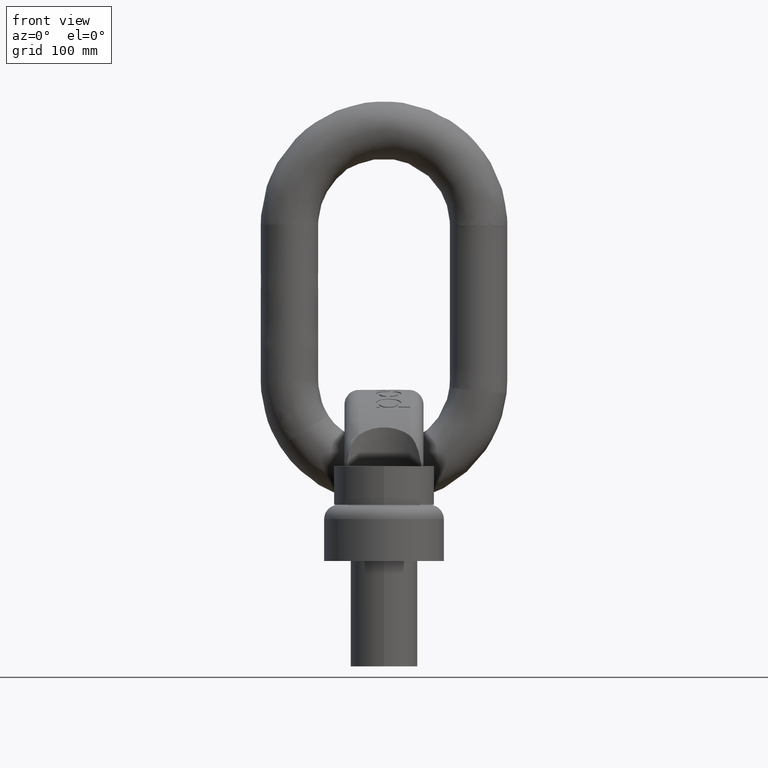
[diagram: clean part render]
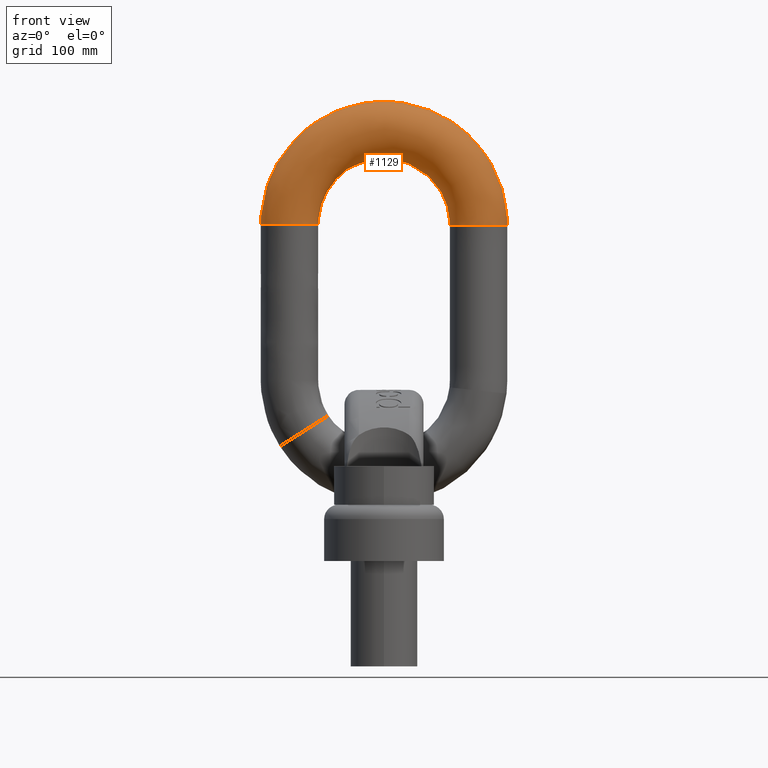
[diagram: same view with one face highlighted and labeled with its STEP entity id]
A machine part, front view. The second image highlights one B-rep face of the part: STEP entity #1129.
In plain terms, the highlighted face is a freeform B-spline surface patch.
Its self-contained STEP definition (entity closure, byte-faithful):
#32=(
BOUNDED_CURVE()
B_SPLINE_CURVE(4,(#6846,#6847,#6848,#6849,#6850,#6851,#6852,#6853,#6854,
#6855,#6856,#6857,#6858,#6859),.UNSPECIFIED.,.T.,.F.)
B_SPLINE_CURVE_WITH_KNOTS((2,3,3,3,3,3,2),(-0.25,0.,0.25,0.5,0.75,1.,1.25),
 .UNSPECIFIED.)
CURVE()
GEOMETRIC_REPRESENTATION_ITEM()
RATIONAL_B_SPLINE_CURVE((1.0166117137858,1.0166117137858,0.958470715535492,
1.0166117137858,1.0166117137858,0.958470715535492,1.0166117137858,1.0166117137858,
0.958470715535492,1.0166117137858,1.0166117137858,0.958470715535492,1.0166117137858,
1.0166117137858))
REPRESENTATION_ITEM('')
);
#34=(
BOUNDED_CURVE()
B_SPLINE_CURVE(4,(#7212,#7213,#7214,#7215,#7216,#7217,#7218,#7219,#7220,
#7221,#7222,#7223,#7224,#7225),.UNSPECIFIED.,.T.,.F.)
B_SPLINE_CURVE_WITH_KNOTS((2,3,3,3,3,3,2),(-0.25,0.,0.25,0.5,0.75,1.,1.25),
 .UNSPECIFIED.)
CURVE()
GEOMETRIC_REPRESENTATION_ITEM()
RATIONAL_B_SPLINE_CURVE((1.0166117137858,1.0166117137858,0.958470715535492,
1.0166117137858,1.0166117137858,0.958470715535492,1.0166117137858,1.0166117137858,
0.958470715535492,1.0166117137858,1.0166117137858,0.958470715535492,1.0166117137858,
1.0166117137858))
REPRESENTATION_ITEM('')
);
#821=(
BOUNDED_SURFACE()
B_SPLINE_SURFACE(4,3,((#7227,#7228,#7229,#7230,#7231,#7232,#7233,#7234,
#7235,#7236,#7237,#7238,#7239,#7240,#7241,#7242,#7243,#7244,#7245,#7246,
#7247,#7248),(#7249,#7250,#7251,#7252,#7253,#7254,#7255,#7256,#7257,#7258,
#7259,#7260,#7261,#7262,#7263,#7264,#7265,#7266,#7267,#7268,#7269,#7270),
(#7271,#7272,#7273,#7274,#7275,#7276,#7277,#7278,#7279,#7280,#7281,#7282,
#7283,#7284,#7285,#7286,#7287,#7288,#7289,#7290,#7291,#7292),(#7293,#7294,
#7295,#7296,#7297,#7298,#7299,#7300,#7301,#7302,#7303,#7304,#7305,#7306,
#7307,#7308,#7309,#7310,#7311,#7312,#7313,#7314),(#7315,#7316,#7317,#7318,
#7319,#7320,#7321,#7322,#7323,#7324,#7325,#7326,#7327,#7328,#7329,#7330,
#7331,#7332,#7333,#7334,#7335,#7336),(#7337,#7338,#7339,#7340,#7341,#7342,
#7343,#7344,#7345,#7346,#7347,#7348,#7349,#7350,#7351,#7352,#7353,#7354,
#7355,#7356,#7357,#7358),(#7359,#7360,#7361,#7362,#7363,#7364,#7365,#7366,
#7367,#7368,#7369,#7370,#7371,#7372,#7373,#7374,#7375,#7376,#7377,#7378,
#7379,#7380),(#7381,#7382,#7383,#7384,#7385,#7386,#7387,#7388,#7389,#7390,
#7391,#7392,#7393,#7394,#7395,#7396,#7397,#7398,#7399,#7400,#7401,#7402),
(#7403,#7404,#7405,#7406,#7407,#7408,#7409,#7410,#7411,#7412,#7413,#7414,
#7415,#7416,#7417,#7418,#7419,#7420,#7421,#7422,#7423,#7424),(#7425,#7426,
#7427,#7428,#7429,#7430,#7431,#7432,#7433,#7434,#7435,#7436,#7437,#7438,
#7439,#7440,#7441,#7442,#7443,#7444,#7445,#7446),(#7447,#7448,#7449,#7450,
#7451,#7452,#7453,#7454,#7455,#7456,#7457,#7458,#7459,#7460,#7461,#7462,
#7463,#7464,#7465,#7466,#7467,#7468),(#7469,#7470,#7471,#7472,#7473,#7474,
#7475,#7476,#7477,#7478,#7479,#7480,#7481,#7482,#7483,#7484,#7485,#7486,
#7487,#7488,#7489,#7490),(#7491,#7492,#7493,#7494,#7495,#7496,#7497,#7498,
#7499,#7500,#7501,#7502,#7503,#7504,#7505,#7506,#7507,#7508,#7509,#7510,
#7511,#7512),(#7513,#7514,#7515,#7516,#7517,#7518,#7519,#7520,#7521,#7522,
#7523,#7524,#7525,#7526,#7527,#7528,#7529,#7530,#7531,#7532,#7533,#7534)),
 .UNSPECIFIED.,.T.,.F.,.F.)
B_SPLINE_SURFACE_WITH_KNOTS((2,3,3,3,3,3,2),(4,1,1,1,1,1,1,1,1,1,1,1,1,
1,1,1,1,1,1,4),(-0.25,0.,0.25,0.5,0.75,1.,1.25),(0.,0.00301747800246402,
0.00844602982105034,0.0195129656569916,0.0543983294734873,0.0981283783414285,
0.179000147466938,0.292593096382167,0.432811601348054,0.518610884125643,
0.630774925291027,0.714258193759197,0.771537738003391,0.830027776828079,
0.860219258366038,0.897651060292576,0.946474217601711,0.974375341287332,
0.98725474696475,1.),.UNSPECIFIED.)
GEOMETRIC_REPRESENTATION_ITEM()
RATIONAL_B_SPLINE_SURFACE(((1.0166117137858,1.0166117137858,1.0166117137858,
1.0166117137858,1.0166117137858,1.01661171378581,1.0166117137858,1.01661171378581,
1.0166117137858,1.01661171378581,1.0166117137858,1.01661171378581,1.0166117137858,
1.0166117137858,1.0166117137858,1.0166117137858,1.0166117137858,1.0166117137858,
1.0166117137858,1.0166117137858,1.0166117137858,1.0166117137858),(1.0166117137858,
1.0166117137858,1.0166117137858,1.0166117137858,1.0166117137858,1.01661171378581,
1.0166117137858,1.01661171378581,1.0166117137858,1.01661171378581,1.0166117137858,
1.01661171378581,1.0166117137858,1.0166117137858,1.0166117137858,1.0166117137858,
1.0166117137858,1.0166117137858,1.0166117137858,1.0166117137858,1.0166117137858,
1.0166117137858),(0.958470715535492,0.958470715535492,0.958470715535492,
0.958470715535492,0.958470715535493,0.958470715535491,0.958470715535494,
0.958470715535491,0.958470715535493,0.958470715535491,0.958470715535492,
0.958470715535494,0.958470715535492,0.958470715535492,0.958470715535493,
0.958470715535492,0.958470715535493,0.958470715535493,0.958470715535491,
0.958470715535492,0.958470715535492,0.958470715535492),(1.0166117137858,
1.0166117137858,1.0166117137858,1.0166117137858,1.0166117137858,1.01661171378581,
1.0166117137858,1.01661171378581,1.0166117137858,1.01661171378581,1.0166117137858,
1.01661171378581,1.0166117137858,1.0166117137858,1.0166117137858,1.0166117137858,
1.0166117137858,1.0166117137858,1.0166117137858,1.0166117137858,1.0166117137858,
1.0166117137858),(1.0166117137858,1.0166117137858,1.0166117137858,1.0166117137858,
1.0166117137858,1.01661171378581,1.0166117137858,1.01661171378581,1.0166117137858,
1.01661171378581,1.0166117137858,1.01661171378581,1.0166117137858,1.0166117137858,
1.0166117137858,1.0166117137858,1.0166117137858,1.0166117137858,1.0166117137858,
1.0166117137858,1.0166117137858,1.0166117137858),(0.958470715535492,0.958470715535492,
0.958470715535492,0.958470715535492,0.958470715535493,0.958470715535491,
0.958470715535494,0.958470715535491,0.958470715535493,0.958470715535491,
0.958470715535492,0.958470715535494,0.958470715535492,0.958470715535492,
0.958470715535493,0.958470715535492,0.958470715535493,0.958470715535493,
0.958470715535491,0.958470715535492,0.958470715535492,0.958470715535492),
(1.0166117137858,1.0166117137858,1.0166117137858,1.0166117137858,1.0166117137858,
1.01661171378581,1.0166117137858,1.01661171378581,1.0166117137858,1.01661171378581,
1.0166117137858,1.01661171378581,1.0166117137858,1.0166117137858,1.0166117137858,
1.0166117137858,1.0166117137858,1.0166117137858,1.0166117137858,1.0166117137858,
1.0166117137858,1.0166117137858),(1.0166117137858,1.0166117137858,1.0166117137858,
1.0166117137858,1.0166117137858,1.01661171378581,1.0166117137858,1.01661171378581,
1.0166117137858,1.01661171378581,1.0166117137858,1.01661171378581,1.0166117137858,
1.0166117137858,1.0166117137858,1.0166117137858,1.0166117137858,1.0166117137858,
1.0166117137858,1.0166117137858,1.0166117137858,1.0166117137858),(0.958470715535492,
0.958470715535492,0.958470715535492,0.958470715535492,0.958470715535493,
0.958470715535491,0.958470715535494,0.958470715535491,0.958470715535493,
0.958470715535491,0.958470715535492,0.958470715535494,0.958470715535492,
0.958470715535492,0.958470715535493,0.958470715535492,0.958470715535493,
0.958470715535493,0.958470715535491,0.958470715535492,0.958470715535492,
0.958470715535492),(1.0166117137858,1.0166117137858,1.0166117137858,1.0166117137858,
1.0166117137858,1.01661171378581,1.0166117137858,1.01661171378581,1.0166117137858,
1.01661171378581,1.0166117137858,1.01661171378581,1.0166117137858,1.0166117137858,
1.0166117137858,1.0166117137858,1.0166117137858,1.0166117137858,1.0166117137858,
1.0166117137858,1.0166117137858,1.0166117137858),(1.0166117137858,1.0166117137858,
1.0166117137858,1.0166117137858,1.0166117137858,1.01661171378581,1.0166117137858,
1.01661171378581,1.0166117137858,1.01661171378581,1.0166117137858,1.01661171378581,
1.0166117137858,1.0166117137858,1.0166117137858,1.0166117137858,1.0166117137858,
1.0166117137858,1.0166117137858,1.0166117137858,1.0166117137858,1.0166117137858),
(0.958470715535492,0.958470715535492,0.958470715535492,0.958470715535492,
0.958470715535493,0.958470715535491,0.958470715535494,0.958470715535491,
0.958470715535493,0.958470715535491,0.958470715535492,0.958470715535494,
0.958470715535492,0.958470715535492,0.958470715535493,0.958470715535492,
0.958470715535493,0.958470715535493,0.958470715535491,0.958470715535492,
0.958470715535492,0.958470715535492),(1.0166117137858,1.0166117137858,1.0166117137858,
1.0166117137858,1.0166117137858,1.01661171378581,1.0166117137858,1.01661171378581,
1.0166117137858,1.01661171378581,1.0166117137858,1.01661171378581,1.0166117137858,
1.0166117137858,1.0166117137858,1.0166117137858,1.0166117137858,1.0166117137858,
1.0166117137858,1.0166117137858,1.0166117137858,1.0166117137858),(1.0166117137858,
1.0166117137858,1.0166117137858,1.0166117137858,1.0166117137858,1.01661171378581,
1.0166117137858,1.01661171378581,1.0166117137858,1.01661171378581,1.0166117137858,
1.01661171378581,1.0166117137858,1.0166117137858,1.0166117137858,1.0166117137858,
1.0166117137858,1.0166117137858,1.0166117137858,1.0166117137858,1.0166117137858,
1.0166117137858)))
REPRESENTATION_ITEM('')
SURFACE()
);
#1129=ADVANCED_FACE('',(#1209,#1210),#821,.F.);
#1209=FACE_BOUND('',#1398,.T.);
#1210=FACE_BOUND('',#1399,.T.);
#1398=EDGE_LOOP('',(#2735));
#1399=EDGE_LOOP('',(#2736));
#2735=ORIENTED_EDGE('',*,*,#3413,.T.);
#2736=ORIENTED_EDGE('',*,*,#3415,.T.);
#3009=VERTEX_POINT('',#6860);
#3011=VERTEX_POINT('',#7226);
#3413=EDGE_CURVE('',#3009,#3009,#32,.T.);
#3415=EDGE_CURVE('',#3011,#3011,#34,.T.);
#6846=CARTESIAN_POINT('',(87.4859886639094,24.,280.201193927326));
#6847=CARTESIAN_POINT('',(70.5152887140247,24.,280.220234272958));
#6848=CARTESIAN_POINT('',(59.2431196443468,19.7573593128807,280.232881128758));
#6849=CARTESIAN_POINT('',(55.0004446568757,8.48528137423857,280.237641215166));
#6850=CARTESIAN_POINT('',(55.0004446568757,-8.48528137423857,280.237641215166));
#6851=CARTESIAN_POINT('',(59.2431196443468,-19.7573593128807,280.232881128758));
#6852=CARTESIAN_POINT('',(70.5152887140247,-24.,280.220234272958));
#6853=CARTESIAN_POINT('',(87.4859886639094,-24.,280.201193927326));
#6854=CARTESIAN_POINT('',(98.7581577335872,-19.7573593128807,280.188547071525));
#6855=CARTESIAN_POINT('',(103.000832721058,-8.48528137423857,280.183786985117));
#6856=CARTESIAN_POINT('',(103.000832721058,8.48528137423857,280.183786985117));
#6857=CARTESIAN_POINT('',(98.7581577335871,19.7573593128807,280.188547071525));
#6858=CARTESIAN_POINT('',(87.4859886639094,24.,280.201193927326));
#6859=CARTESIAN_POINT('',(70.5152887140247,24.,280.220234272958));
#6860=CARTESIAN_POINT('',(79.000638688967,24.,280.210714100142));
#7212=CARTESIAN_POINT('',(-70.5146258746103,24.,280.998765416565));
#7213=CARTESIAN_POINT('',(-87.4851663009502,24.,281.00168699898));
#7214=CARTESIAN_POINT('',(-98.757229412926,19.7573593128807,281.003627553643));
#7215=CARTESIAN_POINT('',(-102.999864519511,8.48528137423857,281.004357949247));
#7216=CARTESIAN_POINT('',(-102.999864519511,-8.48528137423858,281.004357949247));
#7217=CARTESIAN_POINT('',(-98.757229412926,-19.7573593128807,281.003627553643));
#7218=CARTESIAN_POINT('',(-87.4851663009502,-24.,281.00168699898));
#7219=CARTESIAN_POINT('',(-70.5146258746103,-24.,280.998765416565));
#7220=CARTESIAN_POINT('',(-59.2425627626345,-19.7573593128807,280.996824861902));
#7221=CARTESIAN_POINT('',(-54.9999276560495,-8.48528137423857,280.996094466298));
#7222=CARTESIAN_POINT('',(-54.9999276560496,8.48528137423858,280.996094466298));
#7223=CARTESIAN_POINT('',(-59.2425627626345,19.7573593128807,280.996824861902));
#7224=CARTESIAN_POINT('',(-70.5146258746103,24.,280.998765416565));
#7225=CARTESIAN_POINT('',(-87.4851663009502,24.,281.00168699898));
#7226=CARTESIAN_POINT('',(-78.9998960877802,24.,281.000226207773));
#7227=CARTESIAN_POINT('',(70.5152887140247,24.,280.220234272958));
#7228=CARTESIAN_POINT('',(70.5149405638875,24.,280.477611494547));
#7229=CARTESIAN_POINT('',(70.5133945966391,24.,281.185496149016));
#7230=CARTESIAN_POINT('',(70.5046176563928,24.,282.709776313776));
#7231=CARTESIAN_POINT('',(70.359627819216,24.,286.62880790393));
#7232=CARTESIAN_POINT('',(69.6210856744686,24.,293.239600630157));
#7233=CARTESIAN_POINT('',(67.0293584060152,24.,304.15718767117));
#7234=CARTESIAN_POINT('',(60.6202786167138,24.,318.647044436771));
#7235=CARTESIAN_POINT('',(47.293452493628,24.,335.042086897532));
#7236=CARTESIAN_POINT('',(29.5307997209734,24.,346.174108136202));
#7237=CARTESIAN_POINT('',(9.32576834749944,24.,351.712766755696));
#7238=CARTESIAN_POINT('',(-8.75647344881945,24.,351.870721951593));
#7239=CARTESIAN_POINT('',(-25.5394470403522,24.,347.309645367377));
#7240=CARTESIAN_POINT('',(-38.6129137829912,24.,340.508270295953));
#7241=CARTESIAN_POINT('',(-48.011194057902,24.,333.08943751715));
#7242=CARTESIAN_POINT('',(-55.4807976699069,24.,324.842761020602));
#7243=CARTESIAN_POINT('',(-61.8329947312134,23.9999999999999,315.715874096641));
#7244=CARTESIAN_POINT('',(-67.0427867071589,24.,304.301226678497));
#7245=CARTESIAN_POINT('',(-69.6055486639566,24.,293.285818994669));
#7246=CARTESIAN_POINT('',(-70.4009332878647,24.,286.067702853599));
#7247=CARTESIAN_POINT('',(-70.4956541627276,24.,282.737515874406));
#7248=CARTESIAN_POINT('',(-70.5146258746103,24.,280.998765416565));
#7249=CARTESIAN_POINT('',(87.4859886639094,24.,280.201193927326));
#7250=CARTESIAN_POINT('',(87.4855567255382,24.,280.471919867219));
#7251=CARTESIAN_POINT('',(87.4836386950567,24.,281.23937185706));
#7252=CARTESIAN_POINT('',(87.4727494353102,24.,283.104078492904));
#7253=CARTESIAN_POINT('',(87.2928653352383,24.,287.993676351925));
#7254=CARTESIAN_POINT('',(86.3765804999706,24.,296.178612488209));
#7255=CARTESIAN_POINT('',(83.1611101166979,24.,309.733492525798));
#7256=CARTESIAN_POINT('',(75.2095765979622,24.,327.705955167654));
#7257=CARTESIAN_POINT('',(58.6754237866682,24.,348.049014866444));
#7258=CARTESIAN_POINT('',(36.6378874247087,24.,361.858997745929));
#7259=CARTESIAN_POINT('',(11.570172636467,24.,368.731163100777));
#7260=CARTESIAN_POINT('',(-10.8638672669417,24.,368.92704125926));
#7261=CARTESIAN_POINT('',(-31.6859480405189,24.,363.267879138328));
#7262=CARTESIAN_POINT('',(-47.9057662402708,24.,354.830486696631));
#7263=CARTESIAN_POINT('',(-59.5659020290586,24.,345.624526500023));
#7264=CARTESIAN_POINT('',(-68.83319241163,24.0000000000001,335.396734672422));
#7265=CARTESIAN_POINT('',(-76.714153409325,23.9999999999999,324.064225655548));
#7266=CARTESIAN_POINT('',(-83.177770166214,24.,309.924253260093));
#7267=CARTESIAN_POINT('',(-86.3573042444195,24.,296.215946375914));
#7268=CARTESIAN_POINT('',(-87.34411166533,24.,287.361985652048));
#7269=CARTESIAN_POINT('',(-87.4616287249015,24.,282.955896643918));
#7270=CARTESIAN_POINT('',(-87.4851663009502,24.,281.00168699898));
#7271=CARTESIAN_POINT('',(98.7581577335871,19.7573593128807,280.188547071525));
#7272=CARTESIAN_POINT('',(98.7576701419344,19.7573593128807,280.468139411156));
#7273=CARTESIAN_POINT('',(98.7555049820075,19.7573593128807,281.275156833025));
#7274=CARTESIAN_POINT('',(98.7432126910009,19.7573593128807,283.365979347954));
#7275=CARTESIAN_POINT('',(98.5401513482653,19.7573593128807,288.900240485938));
#7276=CARTESIAN_POINT('',(97.5058074073412,19.7573593128808,298.130744024303));
#7277=CARTESIAN_POINT('',(93.8760383877686,19.7573593128807,313.437349838167));
#7278=CARTESIAN_POINT('',(84.8999861826098,19.7573593128807,333.723006535435));
#7279=CARTESIAN_POINT('',(66.2354834860468,19.7573593128807,356.688392828203));
#7280=CARTESIAN_POINT('',(41.3585114665047,19.7573593128807,372.277114149036));
#7281=CARTESIAN_POINT('',(13.0609364046477,19.7573593128807,380.035012763019));
#7282=CARTESIAN_POINT('',(-12.2636268221999,19.7573593128807,380.256079867581));
#7283=CARTESIAN_POINT('',(-35.7685373659693,19.7573593128807,373.867554440513));
#7284=CARTESIAN_POINT('',(-54.0782048755281,19.7573593128807,364.343497073204));
#7285=CARTESIAN_POINT('',(-67.2406957727611,19.7573593128807,353.950502608001));
#7286=CARTESIAN_POINT('',(-77.7020340892419,19.7573593128808,342.406827108888));
#7287=CARTESIAN_POINT('',(-86.5984208271523,19.7573593128807,329.609313984433));
#7288=CARTESIAN_POINT('',(-93.8948450083842,19.7573593128807,313.659143777172));
#7289=CARTESIAN_POINT('',(-97.484047494522,19.7573593128807,298.162176722019));
#7290=CARTESIAN_POINT('',(-98.5980005333492,19.7573593128807,288.221665840325));
#7291=CARTESIAN_POINT('',(-98.7306591279742,19.7573593128807,283.10094811279));
#7292=CARTESIAN_POINT('',(-98.757229412926,19.7573593128807,281.003627553643));
#7293=CARTESIAN_POINT('',(103.000832721058,8.48528137423857,280.183786985117));
#7294=CARTESIAN_POINT('',(103.000324182347,8.48528137423857,280.466716504324));
#7295=CARTESIAN_POINT('',(102.998066006612,8.48528137423857,281.288625760036));
#7296=CARTESIAN_POINT('',(102.98524563573,8.48528137423859,283.464554892736));
#7297=CARTESIAN_POINT('',(102.773460727271,8.48528137423857,289.241457597938));
#7298=CARTESIAN_POINT('',(101.694681113717,8.48528137423857,298.865496988815));
#7299=CARTESIAN_POINT('',(97.9089763154395,8.48528137423859,314.831426051826));
#7300=CARTESIAN_POINT('',(88.5473106779217,8.48528137423857,335.987734218155));
#7301=CARTESIAN_POINT('',(69.080976309307,8.48528137423858,359.940124820431));
#7302=CARTESIAN_POINT('',(43.1352833924384,8.48528137423857,376.198336551467));
#7303=CARTESIAN_POINT('',(13.6220374768895,8.48528137423858,384.289611849289));
#7304=CARTESIAN_POINT('',(-12.7904752767304,8.48528137423857,384.520159694498));
#7305=CARTESIAN_POINT('',(-37.305162616011,8.48528137423857,377.857112883251));
#7306=CARTESIAN_POINT('',(-56.401417989848,8.48528137423858,367.924051173374));
#7307=CARTESIAN_POINT('',(-70.1293727655502,8.48528137423857,357.084274853719));
#7308=CARTESIAN_POINT('',(-81.0401327746727,8.48528137423859,345.045320521844));
#7309=CARTESIAN_POINT('',(-90.3187104966804,8.48528137423858,331.69640187416));
#7310=CARTESIAN_POINT('',(-97.928590873148,8.48528137423857,315.064900422572));
#7311=CARTESIAN_POINT('',(-101.671986389638,8.48528137423857,298.89470856733));
#7312=CARTESIAN_POINT('',(-102.833795127715,8.48528137423857,288.545236539937));
#7313=CARTESIAN_POINT('',(-102.972152768518,8.48528137423857,283.155543305168));
#7314=CARTESIAN_POINT('',(-102.999864519511,8.48528137423857,281.004357949247));
#7315=CARTESIAN_POINT('',(103.000832721058,-8.48528137423857,280.183786985117));
#7316=CARTESIAN_POINT('',(103.000324182347,-8.48528137423857,280.466716504324));
#7317=CARTESIAN_POINT('',(102.998066006612,-8.48528137423857,281.288625760036));
#7318=CARTESIAN_POINT('',(102.98524563573,-8.48528137423856,283.464554892736));
#7319=CARTESIAN_POINT('',(102.773460727271,-8.48528137423858,289.241457597938));
#7320=CARTESIAN_POINT('',(101.694681113717,-8.48528137423855,298.865496988815));
#7321=CARTESIAN_POINT('',(97.9089763154395,-8.48528137423859,314.831426051826));
#7322=CARTESIAN_POINT('',(88.5473106779217,-8.48528137423855,335.987734218155));
#7323=CARTESIAN_POINT('',(69.080976309307,-8.48528137423858,359.940124820431));
#7324=CARTESIAN_POINT('',(43.1352833924384,-8.48528137423856,376.198336551467));
#7325=CARTESIAN_POINT('',(13.6220374768896,-8.48528137423858,384.289611849289));
#7326=CARTESIAN_POINT('',(-12.7904752767304,-8.48528137423857,384.520159694498));
#7327=CARTESIAN_POINT('',(-37.305162616011,-8.48528137423856,377.857112883251));
#7328=CARTESIAN_POINT('',(-56.4014179898481,-8.48528137423858,367.924051173374));
#7329=CARTESIAN_POINT('',(-70.1293727655502,-8.48528137423856,357.08427485372));
#7330=CARTESIAN_POINT('',(-81.0401327746727,-8.48528137423855,345.045320521843));
#7331=CARTESIAN_POINT('',(-90.3187104966803,-8.4852813742386,331.69640187416));
#7332=CARTESIAN_POINT('',(-97.9285908731481,-8.48528137423854,315.064900422572));
#7333=CARTESIAN_POINT('',(-101.671986389638,-8.48528137423857,298.89470856733));
#7334=CARTESIAN_POINT('',(-102.833795127715,-8.48528137423856,288.545236539937));
#7335=CARTESIAN_POINT('',(-102.972152768518,-8.48528137423858,283.155543305168));
#7336=CARTESIAN_POINT('',(-102.999864519511,-8.48528137423858,281.004357949247));
#7337=CARTESIAN_POINT('',(98.7581577335872,-19.7573593128807,280.188547071525));
#7338=CARTESIAN_POINT('',(98.7576701419345,-19.7573593128807,280.468139411156));
#7339=CARTESIAN_POINT('',(98.7555049820075,-19.7573593128807,281.275156833025));
#7340=CARTESIAN_POINT('',(98.7432126910009,-19.7573593128807,283.365979347954));
#7341=CARTESIAN_POINT('',(98.5401513482653,-19.7573593128807,288.900240485938));
#7342=CARTESIAN_POINT('',(97.5058074073413,-19.7573593128808,298.130744024303));
#7343=CARTESIAN_POINT('',(93.8760383877687,-19.7573593128807,313.437349838168));
#7344=CARTESIAN_POINT('',(84.8999861826097,-19.7573593128807,333.723006535435));
#7345=CARTESIAN_POINT('',(66.2354834860469,-19.7573593128807,356.688392828203));
#7346=CARTESIAN_POINT('',(41.3585114665046,-19.7573593128807,372.277114149036));
#7347=CARTESIAN_POINT('',(13.0609364046478,-19.7573593128807,380.035012763019));
#7348=CARTESIAN_POINT('',(-12.2636268221999,-19.7573593128807,380.25607986758));
#7349=CARTESIAN_POINT('',(-35.7685373659692,-19.7573593128807,373.867554440513));
#7350=CARTESIAN_POINT('',(-54.0782048755282,-19.7573593128807,364.343497073204));
#7351=CARTESIAN_POINT('',(-67.2406957727611,-19.7573593128807,353.950502608002));
#7352=CARTESIAN_POINT('',(-77.7020340892419,-19.7573593128807,342.406827108888));
#7353=CARTESIAN_POINT('',(-86.5984208271523,-19.7573593128807,329.609313984433));
#7354=CARTESIAN_POINT('',(-93.8948450083842,-19.7573593128807,313.659143777172));
#7355=CARTESIAN_POINT('',(-97.4840474945221,-19.7573593128807,298.162176722019));
#7356=CARTESIAN_POINT('',(-98.5980005333492,-19.7573593128807,288.221665840325));
#7357=CARTESIAN_POINT('',(-98.7306591279742,-19.7573593128807,283.10094811279));
#7358=CARTESIAN_POINT('',(-98.757229412926,-19.7573593128807,281.003627553643));
#7359=CARTESIAN_POINT('',(87.4859886639094,-24.,280.201193927326));
#7360=CARTESIAN_POINT('',(87.4855567255382,-24.,280.471919867219));
#7361=CARTESIAN_POINT('',(87.4836386950567,-24.,281.23937185706));
#7362=CARTESIAN_POINT('',(87.4727494353102,-24.,283.104078492904));
#7363=CARTESIAN_POINT('',(87.2928653352383,-24.,287.993676351925));
#7364=CARTESIAN_POINT('',(86.3765804999706,-24.,296.178612488209));
#7365=CARTESIAN_POINT('',(83.161110116698,-24.,309.733492525798));
#7366=CARTESIAN_POINT('',(75.2095765979622,-24.,327.705955167654));
#7367=CARTESIAN_POINT('',(58.6754237866682,-24.,348.049014866444));
#7368=CARTESIAN_POINT('',(36.6378874247087,-24.,361.858997745929));
#7369=CARTESIAN_POINT('',(11.570172636467,-24.,368.731163100777));
#7370=CARTESIAN_POINT('',(-10.8638672669417,-24.,368.92704125926));
#7371=CARTESIAN_POINT('',(-31.685948040519,-24.,363.267879138328));
#7372=CARTESIAN_POINT('',(-47.9057662402708,-24.,354.830486696631));
#7373=CARTESIAN_POINT('',(-59.5659020290586,-24.,345.624526500023));
#7374=CARTESIAN_POINT('',(-68.83319241163,-24.,335.396734672422));
#7375=CARTESIAN_POINT('',(-76.714153409325,-23.9999999999999,324.064225655548));
#7376=CARTESIAN_POINT('',(-83.1777701662139,-24.,309.924253260093));
#7377=CARTESIAN_POINT('',(-86.3573042444196,-24.,296.215946375914));
#7378=CARTESIAN_POINT('',(-87.34411166533,-24.,287.361985652048));
#7379=CARTESIAN_POINT('',(-87.4616287249015,-24.,282.955896643918));
#7380=CARTESIAN_POINT('',(-87.4851663009502,-24.,281.00168699898));
#7381=CARTESIAN_POINT('',(70.5152887140247,-24.,280.220234272958));
#7382=CARTESIAN_POINT('',(70.5149405638875,-24.,280.477611494547));
#7383=CARTESIAN_POINT('',(70.5133945966391,-24.,281.185496149016));
#7384=CARTESIAN_POINT('',(70.5046176563928,-24.,282.709776313776));
#7385=CARTESIAN_POINT('',(70.359627819216,-24.,286.62880790393));
#7386=CARTESIAN_POINT('',(69.6210856744686,-24.,293.239600630157));
#7387=CARTESIAN_POINT('',(67.0293584060151,-24.,304.15718767117));
#7388=CARTESIAN_POINT('',(60.6202786167139,-24.,318.647044436771));
#7389=CARTESIAN_POINT('',(47.2934524936279,-24.,335.042086897532));
#7390=CARTESIAN_POINT('',(29.5307997209735,-24.,346.174108136202));
#7391=CARTESIAN_POINT('',(9.32576834749942,-24.,351.712766755696));
#7392=CARTESIAN_POINT('',(-8.75647344881946,-24.,351.870721951593));
#7393=CARTESIAN_POINT('',(-25.5394470403522,-24.,347.309645367377));
#7394=CARTESIAN_POINT('',(-38.6129137829913,-24.,340.508270295953));
#7395=CARTESIAN_POINT('',(-48.0111940579019,-24.,333.08943751715));
#7396=CARTESIAN_POINT('',(-55.4807976699069,-24.0000000000001,324.842761020602));
#7397=CARTESIAN_POINT('',(-61.8329947312134,-23.9999999999999,315.715874096641));
#7398=CARTESIAN_POINT('',(-67.042786707159,-24.,304.301226678497));
#7399=CARTESIAN_POINT('',(-69.6055486639566,-24.,293.285818994669));
#7400=CARTESIAN_POINT('',(-70.4009332878647,-24.,286.067702853599));
#7401=CARTESIAN_POINT('',(-70.4956541627276,-24.,282.737515874406));
#7402=CARTESIAN_POINT('',(-70.5146258746103,-24.,280.998765416565));
#7403=CARTESIAN_POINT('',(59.2431196443468,-19.7573593128807,280.232881128758));
#7404=CARTESIAN_POINT('',(59.242827147491,-19.7573593128807,280.48139195061));
#7405=CARTESIAN_POINT('',(59.2415283096881,-19.7573593128807,281.149711173051));
#7406=CARTESIAN_POINT('',(59.2341544007021,-19.7573593128807,282.447875458726));
#7407=CARTESIAN_POINT('',(59.1123418061888,-19.7573593128807,285.722243769916));
#7408=CARTESIAN_POINT('',(58.4918587670982,-19.7573593128808,291.287469094064));
#7409=CARTESIAN_POINT('',(56.3144301349441,-19.7573593128807,300.453330358797));
#7410=CARTESIAN_POINT('',(50.9298690320664,-19.7573593128808,312.629993068994));
#7411=CARTESIAN_POINT('',(39.7333927942493,-19.7573593128807,326.402708935769));
#7412=CARTESIAN_POINT('',(24.8101756791775,-19.7573593128808,335.755991733098));
#7413=CARTESIAN_POINT('',(7.83500457931884,-19.7573593128807,340.408917093451));
#7414=CARTESIAN_POINT('',(-7.35671389356143,-19.7573593128807,340.541683343275));
#7415=CARTESIAN_POINT('',(-21.4568577149017,-19.7573593128807,336.709970065191));
#7416=CARTESIAN_POINT('',(-32.4404751477339,-19.7573593128807,330.99525991938));
#7417=CARTESIAN_POINT('',(-40.3364003141995,-19.7573593128807,324.763461409171));
#7418=CARTESIAN_POINT('',(-46.6119559922949,-19.7573593128808,317.832668584136));
#7419=CARTESIAN_POINT('',(-51.9487273133863,-19.7573593128807,310.170785767756));
#7420=CARTESIAN_POINT('',(-56.3257118649884,-19.7573593128807,300.566336161415));
#7421=CARTESIAN_POINT('',(-58.4788054138543,-19.7573593128807,291.339588648565));
#7422=CARTESIAN_POINT('',(-59.1470444198455,-19.7573593128807,285.208022665322));
#7423=CARTESIAN_POINT('',(-59.2266237596548,-19.7573593128807,282.592464405535));
#7424=CARTESIAN_POINT('',(-59.2425627626345,-19.7573593128807,280.996824861902));
#7425=CARTESIAN_POINT('',(55.0004446568757,-8.48528137423857,280.237641215166));
#7426=CARTESIAN_POINT('',(55.0001731070784,-8.48528137423857,280.482814857442));
#7427=CARTESIAN_POINT('',(54.9989672850838,-8.48528137423858,281.13624224604));
#7428=CARTESIAN_POINT('',(54.9921214559727,-8.48528137423859,282.349299913944));
#7429=CARTESIAN_POINT('',(54.8790324271834,-8.48528137423857,285.381026657918));
#7430=CARTESIAN_POINT('',(54.3029850607225,-8.48528137423857,290.55271612955));
#7431=CARTESIAN_POINT('',(52.2814922072737,-8.48528137423859,299.059254145141));
#7432=CARTESIAN_POINT('',(47.2825445367542,-8.48528137423857,310.365265386272));
#7433=CARTESIAN_POINT('',(36.8878999709893,-8.48528137423858,323.150976943542));
#7434=CARTESIAN_POINT('',(23.0334037532437,-8.48528137423857,331.834769330665));
#7435=CARTESIAN_POINT('',(7.27390350707693,-8.48528137423857,336.154318007182));
#7436=CARTESIAN_POINT('',(-6.82986543903083,-8.48528137423859,336.277603516358));
#7437=CARTESIAN_POINT('',(-19.9202324648601,-8.48528137423856,332.720411622453));
#7438=CARTESIAN_POINT('',(-30.117262033414,-8.48528137423859,327.414705819211));
#7439=CARTESIAN_POINT('',(-37.4477233214103,-8.48528137423856,321.629689163452));
#7440=CARTESIAN_POINT('',(-43.2738573068642,-8.4852813742386,315.194175171182));
#7441=CARTESIAN_POINT('',(-48.2284376438583,-8.48528137423857,308.083697878029));
#7442=CARTESIAN_POINT('',(-52.2919660002248,-8.48528137423856,299.160579516017));
#7443=CARTESIAN_POINT('',(-54.2908665187385,-8.48528137423858,290.607056803253));
#7444=CARTESIAN_POINT('',(-54.9112498254792,-8.48528137423858,284.88445196571));
#7445=CARTESIAN_POINT('',(-54.9851301191114,-8.48528137423857,282.537869213157));
#7446=CARTESIAN_POINT('',(-54.9999276560495,-8.48528137423857,280.996094466298));
#7447=CARTESIAN_POINT('',(55.0004446568757,8.48528137423857,280.237641215166));
#7448=CARTESIAN_POINT('',(55.0001731070784,8.48528137423857,280.482814857442));
#7449=CARTESIAN_POINT('',(54.9989672850838,8.48528137423857,281.13624224604));
#7450=CARTESIAN_POINT('',(54.9921214559727,8.48528137423857,282.349299913944));
#7451=CARTESIAN_POINT('',(54.8790324271834,8.48528137423857,285.381026657918));
#7452=CARTESIAN_POINT('',(54.3029850607225,8.48528137423856,290.55271612955));
#7453=CARTESIAN_POINT('',(52.2814922072737,8.48528137423858,299.059254145141));
#7454=CARTESIAN_POINT('',(47.2825445367542,8.48528137423856,310.365265386272));
#7455=CARTESIAN_POINT('',(36.8878999709893,8.48528137423858,323.150976943542));
#7456=CARTESIAN_POINT('',(23.0334037532437,8.48528137423855,331.834769330665));
#7457=CARTESIAN_POINT('',(7.27390350707693,8.48528137423858,336.154318007182));
#7458=CARTESIAN_POINT('',(-6.82986543903085,8.48528137423856,336.277603516358));
#7459=CARTESIAN_POINT('',(-19.9202324648601,8.48528137423857,332.720411622453));
#7460=CARTESIAN_POINT('',(-30.117262033414,8.48528137423857,327.414705819211));
#7461=CARTESIAN_POINT('',(-37.4477233214103,8.48528137423856,321.629689163452));
#7462=CARTESIAN_POINT('',(-43.2738573068641,8.48528137423855,315.194175171182));
#7463=CARTESIAN_POINT('',(-48.2284376438584,8.48528137423859,308.083697878029));
#7464=CARTESIAN_POINT('',(-52.2919660002247,8.48528137423856,299.160579516017));
#7465=CARTESIAN_POINT('',(-54.2908665187386,8.48528137423855,290.607056803253));
#7466=CARTESIAN_POINT('',(-54.9112498254791,8.48528137423857,284.88445196571));
#7467=CARTESIAN_POINT('',(-54.9851301191115,8.48528137423858,282.537869213157));
#7468=CARTESIAN_POINT('',(-54.9999276560496,8.48528137423858,280.996094466298));
#7469=CARTESIAN_POINT('',(59.2431196443468,19.7573593128807,280.232881128758));
#7470=CARTESIAN_POINT('',(59.242827147491,19.7573593128807,280.48139195061));
#7471=CARTESIAN_POINT('',(59.2415283096881,19.7573593128807,281.149711173051));
#7472=CARTESIAN_POINT('',(59.234154400702,19.7573593128807,282.447875458726));
#7473=CARTESIAN_POINT('',(59.1123418061889,19.7573593128807,285.722243769916));
#7474=CARTESIAN_POINT('',(58.491858767098,19.7573593128808,291.287469094064));
#7475=CARTESIAN_POINT('',(56.3144301349441,19.7573593128807,300.453330358797));
#7476=CARTESIAN_POINT('',(50.9298690320664,19.7573593128807,312.629993068994));
#7477=CARTESIAN_POINT('',(39.7333927942493,19.7573593128807,326.402708935769));
#7478=CARTESIAN_POINT('',(24.8101756791775,19.7573593128807,335.755991733098));
#7479=CARTESIAN_POINT('',(7.83500457931879,19.7573593128807,340.408917093451));
#7480=CARTESIAN_POINT('',(-7.35671389356136,19.7573593128807,340.541683343274));
#7481=CARTESIAN_POINT('',(-21.4568577149018,19.7573593128807,336.709970065191));
#7482=CARTESIAN_POINT('',(-32.4404751477339,19.7573593128808,330.99525991938));
#7483=CARTESIAN_POINT('',(-40.3364003141995,19.7573593128807,324.763461409171));
#7484=CARTESIAN_POINT('',(-46.6119559922948,19.7573593128807,317.832668584136));
#7485=CARTESIAN_POINT('',(-51.9487273133864,19.7573593128807,310.170785767756));
#7486=CARTESIAN_POINT('',(-56.3257118649883,19.7573593128807,300.566336161415));
#7487=CARTESIAN_POINT('',(-58.4788054138544,19.7573593128807,291.339588648565));
#7488=CARTESIAN_POINT('',(-59.1470444198454,19.7573593128807,285.208022665322));
#7489=CARTESIAN_POINT('',(-59.2266237596548,19.7573593128807,282.592464405535));
#7490=CARTESIAN_POINT('',(-59.2425627626345,19.7573593128807,280.996824861902));
#7491=CARTESIAN_POINT('',(70.5152887140247,24.,280.220234272958));
#7492=CARTESIAN_POINT('',(70.5149405638875,24.,280.477611494547));
#7493=CARTESIAN_POINT('',(70.5133945966391,24.,281.185496149016));
#7494=CARTESIAN_POINT('',(70.5046176563928,24.,282.709776313776));
#7495=CARTESIAN_POINT('',(70.359627819216,24.,286.62880790393));
#7496=CARTESIAN_POINT('',(69.6210856744686,24.,293.239600630157));
#7497=CARTESIAN_POINT('',(67.0293584060152,24.,304.15718767117));
#7498=CARTESIAN_POINT('',(60.6202786167138,24.,318.647044436771));
#7499=CARTESIAN_POINT('',(47.293452493628,24.,335.042086897532));
#7500=CARTESIAN_POINT('',(29.5307997209734,24.,346.174108136202));
#7501=CARTESIAN_POINT('',(9.32576834749944,24.,351.712766755696));
#7502=CARTESIAN_POINT('',(-8.75647344881945,24.,351.870721951593));
#7503=CARTESIAN_POINT('',(-25.5394470403522,24.,347.309645367377));
#7504=CARTESIAN_POINT('',(-38.6129137829912,24.,340.508270295953));
#7505=CARTESIAN_POINT('',(-48.011194057902,24.,333.08943751715));
#7506=CARTESIAN_POINT('',(-55.4807976699069,24.,324.842761020602));
#7507=CARTESIAN_POINT('',(-61.8329947312134,23.9999999999999,315.715874096641));
#7508=CARTESIAN_POINT('',(-67.0427867071589,24.,304.301226678497));
#7509=CARTESIAN_POINT('',(-69.6055486639566,24.,293.285818994669));
#7510=CARTESIAN_POINT('',(-70.4009332878647,24.,286.067702853599));
#7511=CARTESIAN_POINT('',(-70.4956541627276,24.,282.737515874406));
#7512=CARTESIAN_POINT('',(-70.5146258746103,24.,280.998765416565));
#7513=CARTESIAN_POINT('',(87.4859886639094,24.,280.201193927326));
#7514=CARTESIAN_POINT('',(87.4855567255382,24.,280.471919867219));
#7515=CARTESIAN_POINT('',(87.4836386950567,24.,281.23937185706));
#7516=CARTESIAN_POINT('',(87.4727494353102,24.,283.104078492904));
#7517=CARTESIAN_POINT('',(87.2928653352383,24.,287.993676351925));
#7518=CARTESIAN_POINT('',(86.3765804999706,24.,296.178612488209));
#7519=CARTESIAN_POINT('',(83.1611101166979,24.,309.733492525798));
#7520=CARTESIAN_POINT('',(75.2095765979622,24.,327.705955167654));
#7521=CARTESIAN_POINT('',(58.6754237866682,24.,348.049014866444));
#7522=CARTESIAN_POINT('',(36.6378874247087,24.,361.858997745929));
#7523=CARTESIAN_POINT('',(11.570172636467,24.,368.731163100777));
#7524=CARTESIAN_POINT('',(-10.8638672669417,24.,368.92704125926));
#7525=CARTESIAN_POINT('',(-31.6859480405189,24.,363.267879138328));
#7526=CARTESIAN_POINT('',(-47.9057662402708,24.,354.830486696631));
#7527=CARTESIAN_POINT('',(-59.5659020290586,24.,345.624526500023));
#7528=CARTESIAN_POINT('',(-68.83319241163,24.0000000000001,335.396734672422));
#7529=CARTESIAN_POINT('',(-76.714153409325,23.9999999999999,324.064225655548));
#7530=CARTESIAN_POINT('',(-83.177770166214,24.,309.924253260093));
#7531=CARTESIAN_POINT('',(-86.3573042444195,24.,296.215946375914));
#7532=CARTESIAN_POINT('',(-87.34411166533,24.,287.361985652048));
#7533=CARTESIAN_POINT('',(-87.4616287249015,24.,282.955896643918));
#7534=CARTESIAN_POINT('',(-87.4851663009502,24.,281.00168699898));